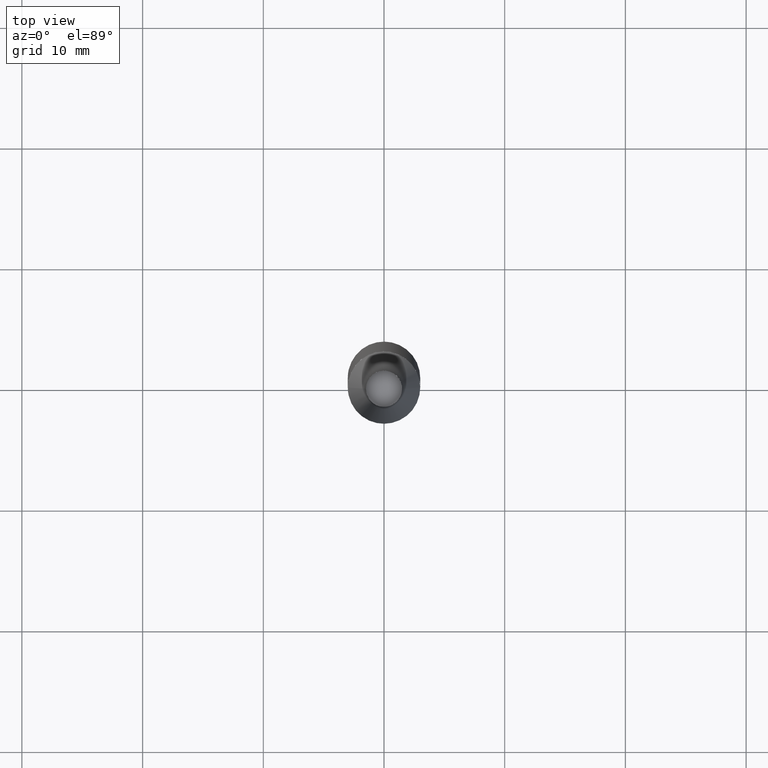
[diagram: clean part render]
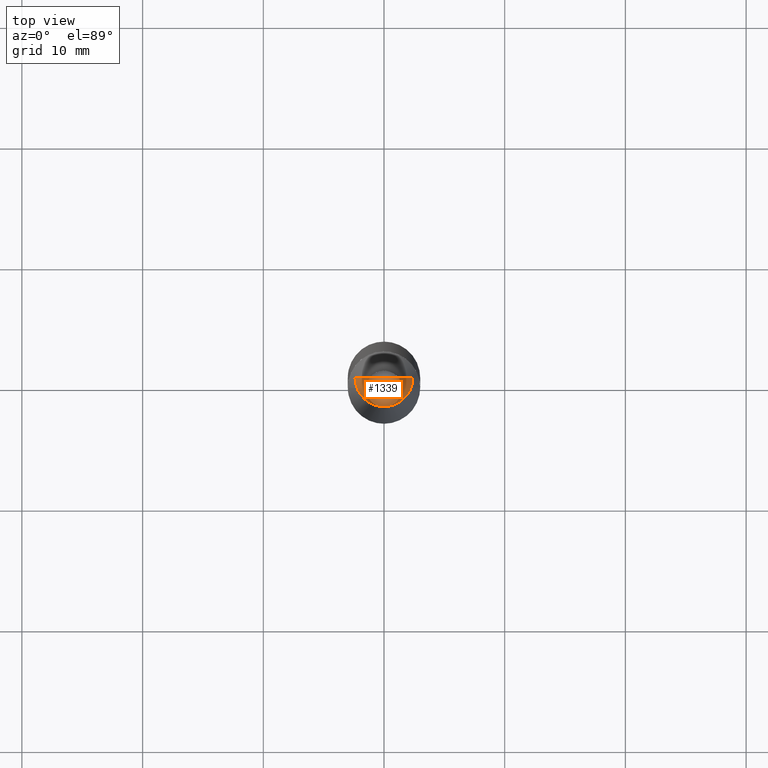
[diagram: same view with one face highlighted and labeled with its STEP entity id]
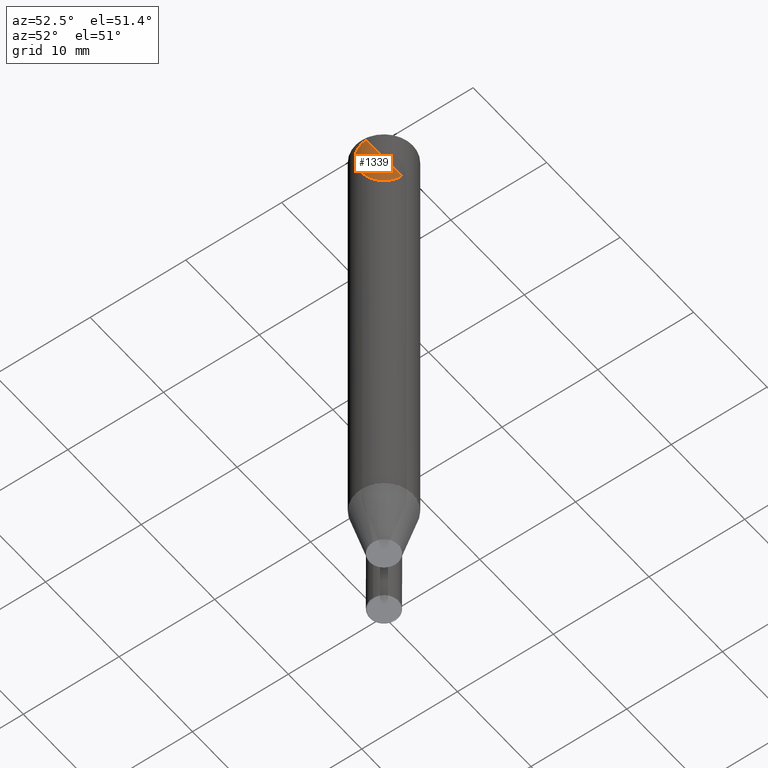
[diagram: same view with one face highlighted and labeled with its STEP entity id]
A machine part, top view. The second image highlights one B-rep face of the part: STEP entity #1339.
A second angle (auxiliary view) of the same face is appended — the face is thin or edge-on in the first view.
In plain terms, the highlighted face is a freeform B-spline surface patch.
Its self-contained STEP definition (entity closure, byte-faithful):
#984=CARTESIAN_POINT('',(2.4,0.0,46.901923788647));
#988=CARTESIAN_POINT('',(-2.4,0.0,46.901923788647));
#989=CARTESIAN_POINT('',(0.0,0.0,46.901923788647));
#996=CARTESIAN_POINT('',(-2.4,-2.4,46.901923788647));
#997=CARTESIAN_POINT('',(0.0,-2.4,46.901923788647));
#998=CARTESIAN_POINT('',(2.4,-2.4,46.901923788647));
#1324=(
BOUNDED_SURFACE()
B_SPLINE_SURFACE(1,2,(
(#988,#996,#997,#998,#984),
(#989,#989,#989,#989,#989)
), .UNSPECIFIED.,.F.,.F.,.F.)
B_SPLINE_SURFACE_WITH_KNOTS((2,2),(3,2,3),(
0.0,1.0),(
0.0,0.5,1.0), .UNSPECIFIED.)
GEOMETRIC_REPRESENTATION_ITEM()
RATIONAL_B_SPLINE_SURFACE(((1.0,0.707106781187,1.0,0.707106781187,1.0),
(1.0,0.707106781187,1.0,0.707106781187,1.0)
))
REPRESENTATION_ITEM('')
SURFACE()
);
#1325=(
BOUNDED_CURVE()
B_SPLINE_CURVE(1,(#989,#984),.UNSPECIFIED.,.F.,.F.)
B_SPLINE_CURVE_WITH_KNOTS((2,2),
(0.0,1.0),.UNSPECIFIED.)
CURVE()
GEOMETRIC_REPRESENTATION_ITEM()
RATIONAL_B_SPLINE_CURVE((1.0,1.0))
REPRESENTATION_ITEM('')
);
#1326=(
BOUNDED_CURVE()
B_SPLINE_CURVE(2,(#984,#998,#997,#996,#988),.UNSPECIFIED.,.F.,.F.)
B_SPLINE_CURVE_WITH_KNOTS((3,2,3),
(0.0,0.5,1.0),.UNSPECIFIED.)
CURVE()
GEOMETRIC_REPRESENTATION_ITEM()
RATIONAL_B_SPLINE_CURVE((1.0,0.707106781187,1.0,0.707106781187,1.0))
REPRESENTATION_ITEM('')
);
#1327=(
BOUNDED_CURVE()
B_SPLINE_CURVE(1,(#988,#989),.UNSPECIFIED.,.F.,.F.)
B_SPLINE_CURVE_WITH_KNOTS((2,2),
(0.0,1.0),.UNSPECIFIED.)
CURVE()
GEOMETRIC_REPRESENTATION_ITEM()
RATIONAL_B_SPLINE_CURVE((1.0,1.0))
REPRESENTATION_ITEM('')
);
#1328=VERTEX_POINT('',#984);
#1329=VERTEX_POINT('',#988);
#1330=VERTEX_POINT('',#989);
#1331=EDGE_CURVE('',#1330,#1328,#1325,.T.);
#1332=EDGE_CURVE('',#1328,#1329,#1326,.T.);
#1333=EDGE_CURVE('',#1329,#1330,#1327,.T.);
#1334=ORIENTED_EDGE('',*,*,#1331,.T.);
#1335=ORIENTED_EDGE('',*,*,#1332,.T.);
#1336=ORIENTED_EDGE('',*,*,#1333,.T.);
#1337=EDGE_LOOP('',(#1334,#1335,#1336));
#1338=FACE_OUTER_BOUND('',#1337,.T.);
#1339=ADVANCED_FACE('',(#1338),#1324,.T.);